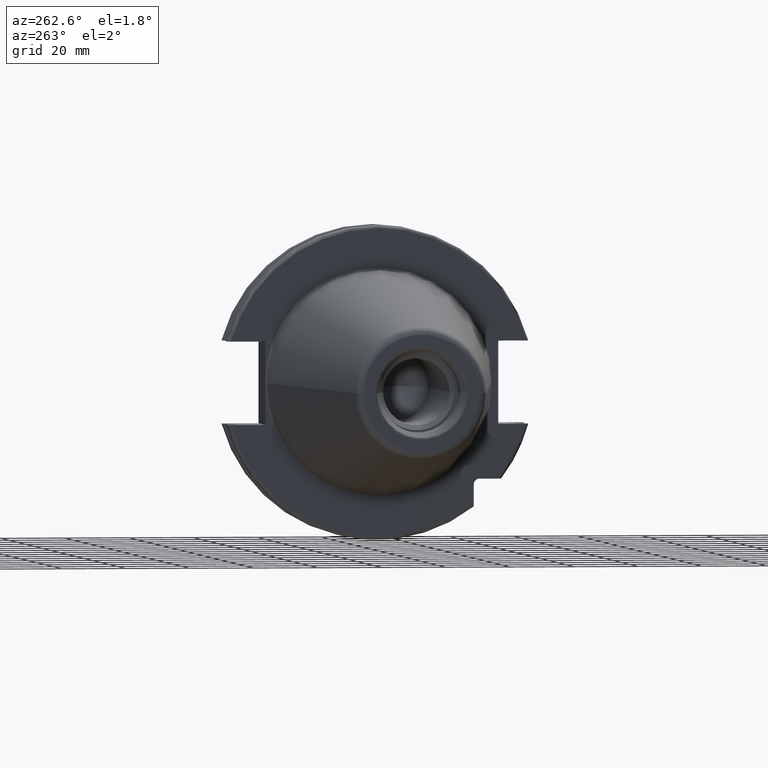
[diagram: clean part render]
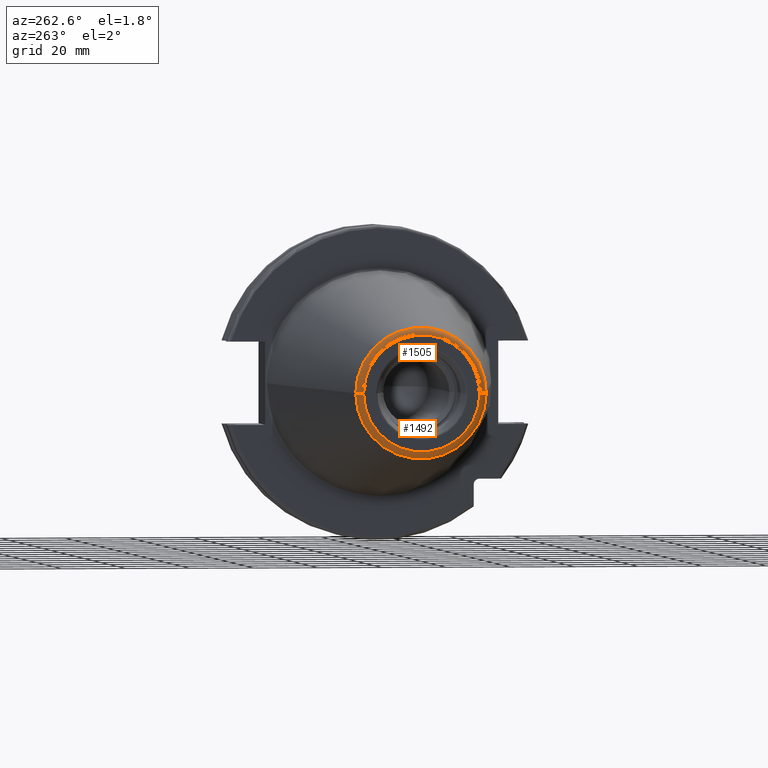
[diagram: same view with one multi-face feature highlighted, each face labeled with its STEP entity id]
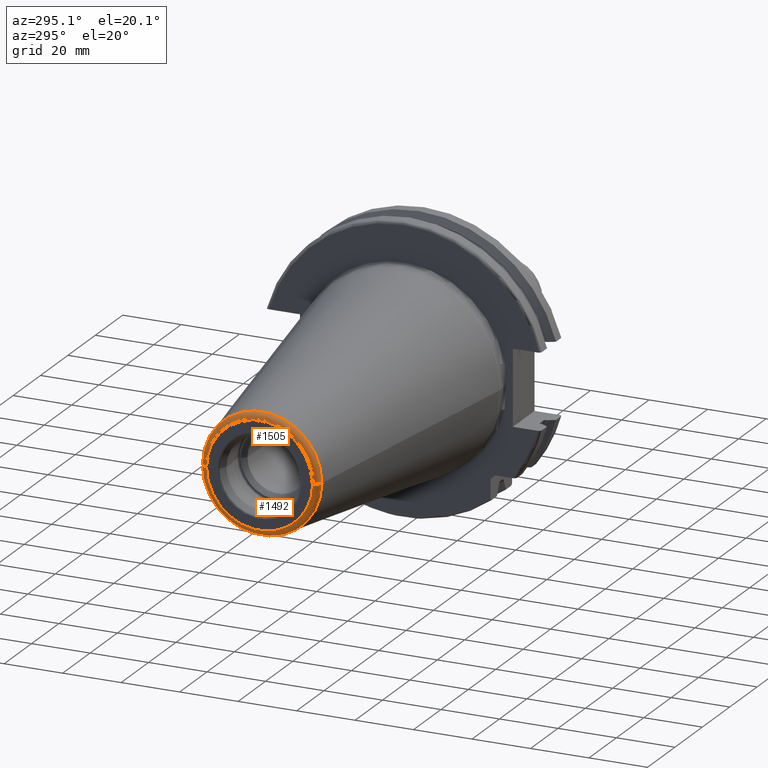
[diagram: same view with one multi-face feature highlighted, each face labeled with its STEP entity id]
A machine part, auxiliary view. The highlighted faces form ONE feature: a constant-radius fillet chain: 2 tangent blend faces with common blend radius 2.25 mm. The faces share edges in the B-rep.
A second angle (auxiliary view) of the same feature is appended — it is thin or edge-on in the first view.
Their STEP definitions:
[1] entity #1505 (Torus):
#7=CARTESIAN_POINT('',(-1.016E2,0.E0,0.E0));
#8=DIRECTION('',(1.E0,0.E0,0.E0));
#9=DIRECTION('',(0.E0,1.E0,0.E0));
#10=AXIS2_PLACEMENT_3D('',#7,#8,#9);
#22=CARTESIAN_POINT('',(-9.935E1,1.816144700117E1,0.E0));
#23=DIRECTION('',(0.E0,0.E0,1.E0));
#24=DIRECTION('',(-1.443186691705E-1,9.895312636440E-1,0.E0));
#25=AXIS2_PLACEMENT_3D('',#22,#23,#24);
#27=CARTESIAN_POINT('',(-9.935E1,-1.816144700117E1,0.E0));
#28=DIRECTION('',(0.E0,0.E0,-1.E0));
#29=DIRECTION('',(-1.443186691705E-1,-9.895312636440E-1,0.E0));
#30=AXIS2_PLACEMENT_3D('',#27,#28,#29);
#37=CARTESIAN_POINT('',(-9.967471700563E1,0.E0,0.E0));
#38=DIRECTION('',(1.E0,0.E0,0.E0));
#39=DIRECTION('',(0.E0,1.E0,0.E0));
#40=AXIS2_PLACEMENT_3D('',#37,#38,#39);
#1206=CARTESIAN_POINT('',(-9.967471700563E1,2.038789234437E1,0.E0));
#1207=CARTESIAN_POINT('',(-1.016E2,1.816144700117E1,0.E0));
#1208=VERTEX_POINT('',#1206);
#1209=VERTEX_POINT('',#1207);
#1210=CARTESIAN_POINT('',(-9.967471700563E1,-2.038789234437E1,0.E0));
#1211=CARTESIAN_POINT('',(-1.016E2,-1.816144700117E1,0.E0));
#1212=VERTEX_POINT('',#1210);
#1213=VERTEX_POINT('',#1211);
#1493=CARTESIAN_POINT('',(-9.935E1,0.E0,0.E0));
#1494=DIRECTION('',(1.E0,0.E0,0.E0));
#1495=DIRECTION('',(0.E0,-1.E0,0.E0));
#1496=AXIS2_PLACEMENT_3D('',#1493,#1494,#1495);
#1497=TOROIDAL_SURFACE('',#1496,1.816144700117E1,2.25E0);
#1498=ORIENTED_EDGE('',*,*,#1483,.F.);
#1500=ORIENTED_EDGE('',*,*,#1499,.T.);
#1501=ORIENTED_EDGE('',*,*,#1486,.T.);
#1502=ORIENTED_EDGE('',*,*,#1467,.F.);
#1503=EDGE_LOOP('',(#1498,#1500,#1501,#1502));
#1504=FACE_OUTER_BOUND('',#1503,.F.);
#1505=ADVANCED_FACE('',(#1504),#1497,.T.);
#11=CIRCLE('',#10,1.816144700117E1);
#26=CIRCLE('',#25,2.25E0);
#31=CIRCLE('',#30,2.25E0);
#41=CIRCLE('',#40,2.038789234437E1);
#1467=EDGE_CURVE('',#1209,#1213,#11,.T.);
#1483=EDGE_CURVE('',#1208,#1209,#26,.T.);
#1486=EDGE_CURVE('',#1212,#1213,#31,.T.);
#1499=EDGE_CURVE('',#1208,#1212,#41,.T.);
[2] entity #1492 (Torus):
#2=CARTESIAN_POINT('',(-1.016E2,0.E0,0.E0));
#3=DIRECTION('',(-1.E0,0.E0,0.E0));
#4=DIRECTION('',(0.E0,1.E0,0.E0));
#5=AXIS2_PLACEMENT_3D('',#2,#3,#4);
#22=CARTESIAN_POINT('',(-9.935E1,1.816144700117E1,0.E0));
#23=DIRECTION('',(0.E0,0.E0,1.E0));
#24=DIRECTION('',(-1.443186691705E-1,9.895312636440E-1,0.E0));
#25=AXIS2_PLACEMENT_3D('',#22,#23,#24);
#27=CARTESIAN_POINT('',(-9.935E1,-1.816144700117E1,0.E0));
#28=DIRECTION('',(0.E0,0.E0,-1.E0));
#29=DIRECTION('',(-1.443186691705E-1,-9.895312636440E-1,0.E0));
#30=AXIS2_PLACEMENT_3D('',#27,#28,#29);
#32=CARTESIAN_POINT('',(-9.967471700563E1,0.E0,0.E0));
#33=DIRECTION('',(-1.E0,0.E0,0.E0));
#34=DIRECTION('',(0.E0,1.E0,0.E0));
#35=AXIS2_PLACEMENT_3D('',#32,#33,#34);
#1206=CARTESIAN_POINT('',(-9.967471700563E1,2.038789234437E1,0.E0));
#1207=CARTESIAN_POINT('',(-1.016E2,1.816144700117E1,0.E0));
#1208=VERTEX_POINT('',#1206);
#1209=VERTEX_POINT('',#1207);
#1210=CARTESIAN_POINT('',(-9.967471700563E1,-2.038789234437E1,0.E0));
#1211=CARTESIAN_POINT('',(-1.016E2,-1.816144700117E1,0.E0));
#1212=VERTEX_POINT('',#1210);
#1213=VERTEX_POINT('',#1211);
#1478=CARTESIAN_POINT('',(-9.935E1,0.E0,0.E0));
#1479=DIRECTION('',(1.E0,0.E0,0.E0));
#1480=DIRECTION('',(0.E0,-1.E0,0.E0));
#1481=AXIS2_PLACEMENT_3D('',#1478,#1479,#1480);
#1482=TOROIDAL_SURFACE('',#1481,1.816144700117E1,2.25E0);
#1484=ORIENTED_EDGE('',*,*,#1483,.T.);
#1485=ORIENTED_EDGE('',*,*,#1465,.T.);
#1487=ORIENTED_EDGE('',*,*,#1486,.F.);
#1489=ORIENTED_EDGE('',*,*,#1488,.F.);
#1490=EDGE_LOOP('',(#1484,#1485,#1487,#1489));
#1491=FACE_OUTER_BOUND('',#1490,.F.);
#1492=ADVANCED_FACE('',(#1491),#1482,.T.);
#6=CIRCLE('',#5,1.816144700117E1);
#26=CIRCLE('',#25,2.25E0);
#31=CIRCLE('',#30,2.25E0);
#36=CIRCLE('',#35,2.038789234437E1);
#1465=EDGE_CURVE('',#1209,#1213,#6,.T.);
#1483=EDGE_CURVE('',#1208,#1209,#26,.T.);
#1486=EDGE_CURVE('',#1212,#1213,#31,.T.);
#1488=EDGE_CURVE('',#1208,#1212,#36,.T.);